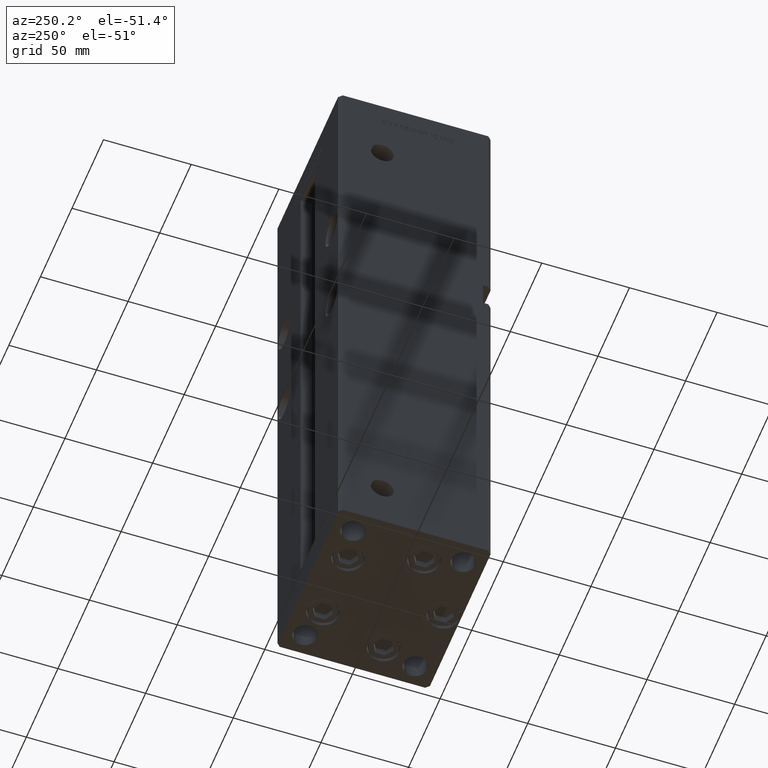
[diagram: clean part render]
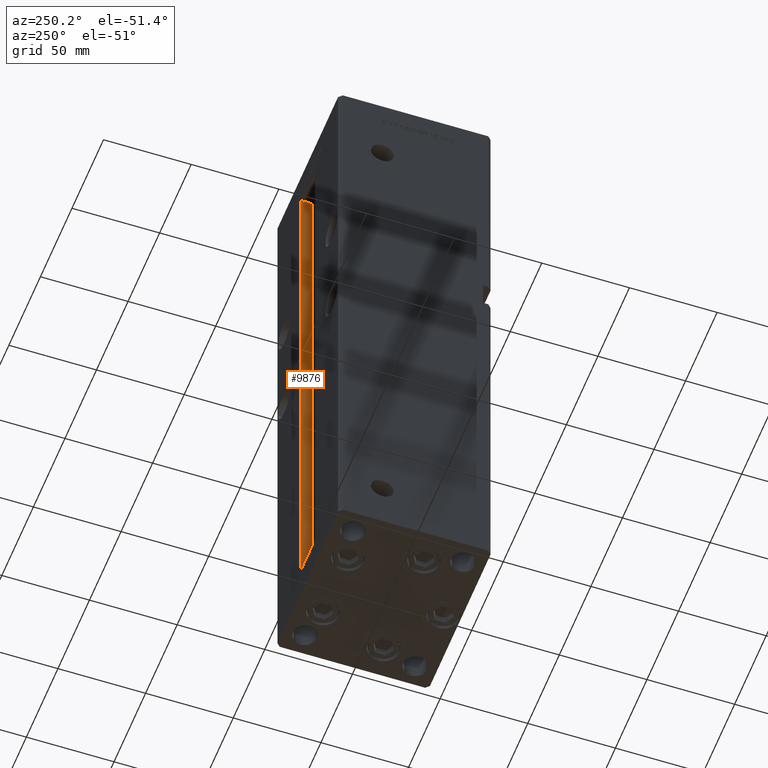
[diagram: same view with one face highlighted and labeled with its STEP entity id]
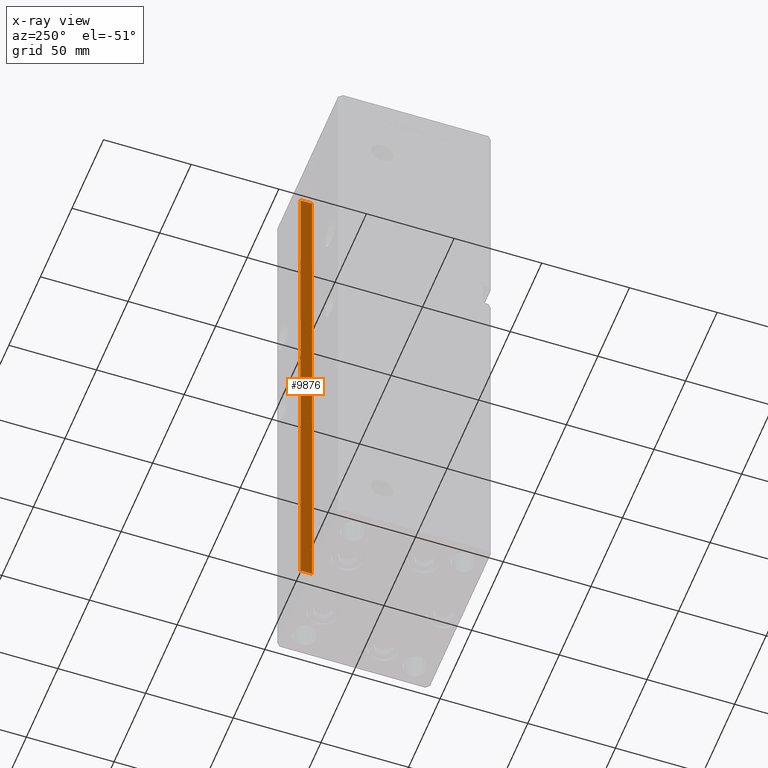
[diagram: x-ray of the same camera — body ghosted, the highlighted face saturated]
A machine part, auxiliary view. The second image highlights one B-rep face of the part: STEP entity #9876.
The next image is the same camera in x-ray: the body ghosted, the highlighted face saturated — about 0% of this face is hidden behind the body in this view.
In plain terms, the highlighted planar face has unit normal (1, 0, 0).
Its self-contained STEP definition (entity closure, byte-faithful):
#1822 = VECTOR ( 'NONE', #4913, 1000.000000000000000 ) ;
#3920 = CARTESIAN_POINT ( 'NONE',  ( 11.24999999999999645, 37.00000000000000000, 0.000000000000000000 ) ) ;
#4328 = EDGE_CURVE ( 'NONE', #42311, #16409, #12166, .T. ) ;
#4913 = DIRECTION ( 'NONE',  ( -0.000000000000000000, -1.000000000000000000, 0.000000000000000000 ) ) ;
#6369 = CARTESIAN_POINT ( 'NONE',  ( 11.24999999999999645, 43.50000000000000000, 0.000000000000000000 ) ) ;
#7075 = CARTESIAN_POINT ( 'NONE',  ( 11.24999999999999645, 37.00000000000000000, 0.000000000000000000 ) ) ;
#7431 = DIRECTION ( 'NONE',  ( -0.000000000000000000, -0.000000000000000000, 1.000000000000000000 ) ) ;
#9392 = EDGE_CURVE ( 'NONE', #42311, #9948, #18910, .T. ) ;
#9774 = DIRECTION ( 'NONE',  ( 0.000000000000000000, 0.000000000000000000, -1.000000000000000000 ) ) ;
#9876 = ADVANCED_FACE ( 'NONE', ( #24330 ), #40728, .F. ) ;
#9948 = VERTEX_POINT ( 'NONE', #34236 ) ;
#10132 = VECTOR ( 'NONE', #35310, 1000.000000000000000 ) ;
#10384 = LINE ( 'NONE', #6369, #25552 ) ;
#12166 = LINE ( 'NONE', #7075, #45295 ) ;
#14239 = VERTEX_POINT ( 'NONE', #14919 ) ;
#14717 = EDGE_CURVE ( 'NONE', #14239, #16409, #33644, .T. ) ;
#14919 = CARTESIAN_POINT ( 'NONE',  ( 11.24999999999998934, 43.50000000000000000, 318.5000000000000000 ) ) ;
#16250 = DIRECTION ( 'NONE',  ( 1.000000000000000000, -0.000000000000000000, 0.000000000000000000 ) ) ;
#16381 = ORIENTED_EDGE ( 'NONE', *, *, #9392, .F. ) ;
#16409 = VERTEX_POINT ( 'NONE', #25227 ) ;
#18910 = LINE ( 'NONE', #27523, #10132 ) ;
#24330 = FACE_OUTER_BOUND ( 'NONE', #38012, .T. ) ;
#25227 = CARTESIAN_POINT ( 'NONE',  ( 11.24999999999999645, 37.00000000000000000, 318.5000000000000000 ) ) ;
#25552 = VECTOR ( 'NONE', #7431, 1000.000000000000000 ) ;
#26016 = ORIENTED_EDGE ( 'NONE', *, *, #4328, .T. ) ;
#27523 = CARTESIAN_POINT ( 'NONE',  ( 11.24999999999999645, 37.00000000000000000, 0.000000000000000000 ) ) ;
#33097 = ORIENTED_EDGE ( 'NONE', *, *, #14717, .F. ) ;
#33644 = LINE ( 'NONE', #45490, #1822 ) ;
#34236 = CARTESIAN_POINT ( 'NONE',  ( 11.24999999999999645, 43.50000000000000000, 0.000000000000000000 ) ) ;
#34341 = AXIS2_PLACEMENT_3D ( 'NONE', #3920, #16250, #9774 ) ;
#35310 = DIRECTION ( 'NONE',  ( 0.000000000000000000, 1.000000000000000000, 0.000000000000000000 ) ) ;
#38012 = EDGE_LOOP ( 'NONE', ( #52990, #16381, #26016, #33097 ) ) ;
#40728 = PLANE ( 'NONE',  #34341 ) ;
#41975 = CARTESIAN_POINT ( 'NONE',  ( 11.24999999999999645, 37.00000000000000000, 0.000000000000000000 ) ) ;
#42311 = VERTEX_POINT ( 'NONE', #41975 ) ;
#43685 = EDGE_CURVE ( 'NONE', #9948, #14239, #10384, .T. ) ;
#45295 = VECTOR ( 'NONE', #51948, 1000.000000000000000 ) ;
#45490 = CARTESIAN_POINT ( 'NONE',  ( 11.24999999999999645, 0.000000000000000000, 318.5000000000000000 ) ) ;
#51948 = DIRECTION ( 'NONE',  ( -0.000000000000000000, -0.000000000000000000, 1.000000000000000000 ) ) ;
#52990 = ORIENTED_EDGE ( 'NONE', *, *, #43685, .F. ) ;